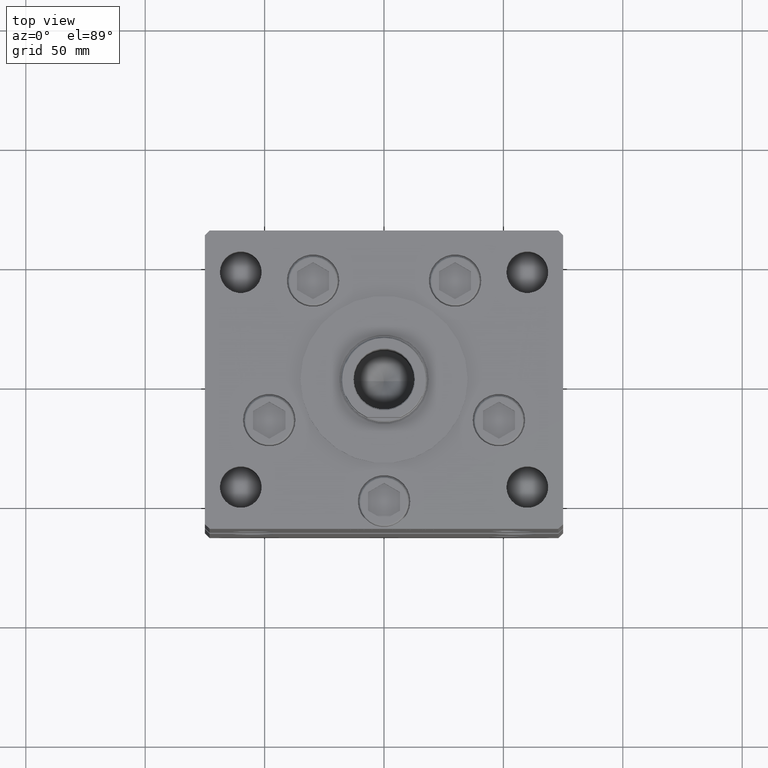
[diagram: clean part render]
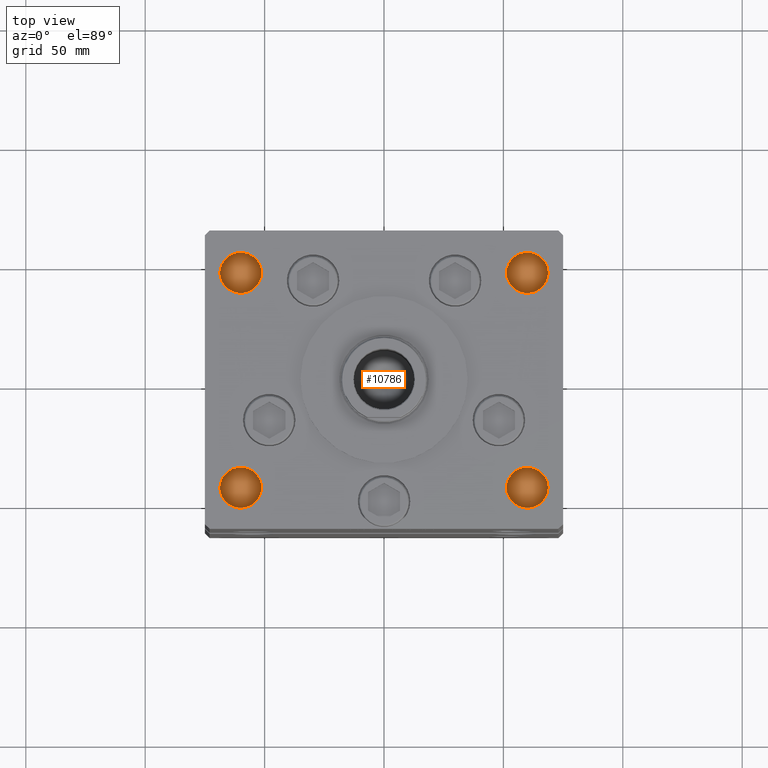
[diagram: same view with one face highlighted and labeled with its STEP entity id]
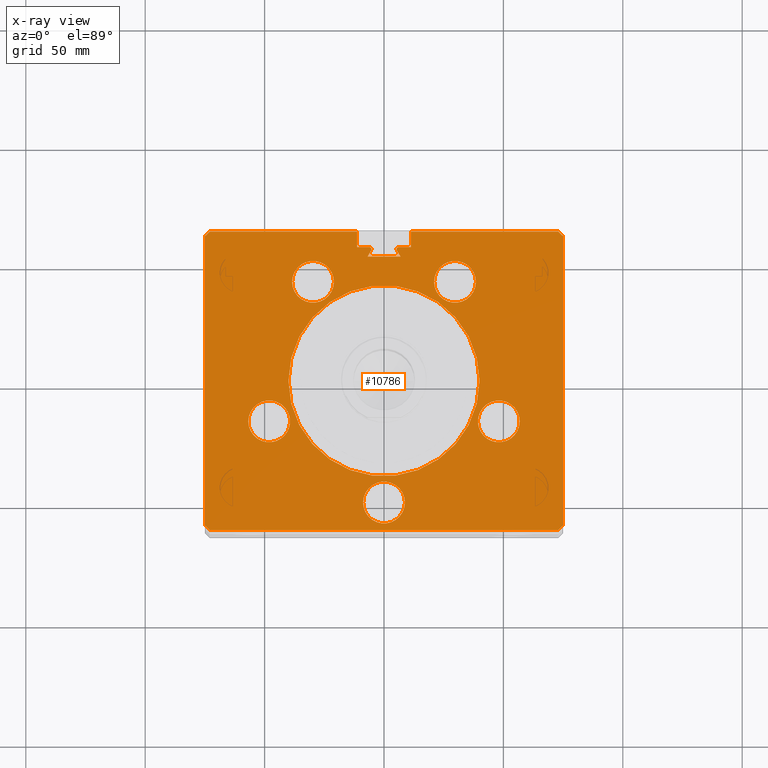
[diagram: x-ray of the same camera — body ghosted, the highlighted face saturated]
A machine part, top view. The second image highlights one B-rep face of the part: STEP entity #10786.
The next image is the same camera in x-ray: the body ghosted, the highlighted face saturated — about 0% of this face is hidden behind the body in this view.
In plain terms, the highlighted planar face has unit normal (0, 0, -1).
Its self-contained STEP definition (entity closure, byte-faithful):
#161 = CARTESIAN_POINT ( 'NONE',  ( -73.00000000000001421, 62.50000000000000000, 167.0000000000000000 ) ) ;
#331 = LINE ( 'NONE', #4872, #39174 ) ;
#793 = EDGE_CURVE ( 'NONE', #34822, #23140, #22831, .T. ) ;
#1015 = CARTESIAN_POINT ( 'NONE',  ( 48.08326112068522207, -17.00000000000000711, 167.0000000000000000 ) ) ;
#1034 = VERTEX_POINT ( 'NONE', #40977 ) ;
#1314 = VERTEX_POINT ( 'NONE', #36585 ) ;
#1406 = CARTESIAN_POINT ( 'NONE',  ( 8.750000000000003553, -51.00000000000000000, 167.0000000000000000 ) ) ;
#1613 = AXIS2_PLACEMENT_3D ( 'NONE', #17362, #29683, #37465 ) ;
#1704 = VERTEX_POINT ( 'NONE', #27078 ) ;
#1720 = LINE ( 'NONE', #47310, #35968 ) ;
#2141 = CIRCLE ( 'NONE', #38080, 8.750000000000000000 ) ;
#2282 = CARTESIAN_POINT ( 'NONE',  ( 5.375042956467948052, 54.59999999999899956, 166.9999999999999432 ) ) ;
#2542 = VECTOR ( 'NONE', #20468, 1000.000000000000114 ) ;
#3225 = EDGE_CURVE ( 'NONE', #25651, #11020, #12055, .T. ) ;
#3471 = CIRCLE ( 'NONE', #40296, 40.00000000000000000 ) ;
#3594 = LINE ( 'NONE', #6544, #5905 ) ;
#3629 = CARTESIAN_POINT ( 'NONE',  ( 20.98102073172059789, 41.43749999999999289, 167.0000000000000000 ) ) ;
#3754 = LINE ( 'NONE', #32956, #31756 ) ;
#4133 = DIRECTION ( 'NONE',  ( 1.000000000000000000, 0.000000000000000000, 0.000000000000000000 ) ) ;
#4184 = CIRCLE ( 'NONE', #1613, 8.750000000000000000 ) ;
#4506 = CARTESIAN_POINT ( 'NONE',  ( -74.99999999999998579, -60.50000000000000000, 167.0000000000000000 ) ) ;
#4621 = FACE_BOUND ( 'NONE', #29887, .T. ) ;
#4676 = CIRCLE ( 'NONE', #34644, 40.00000000000000000 ) ;
#4872 = CARTESIAN_POINT ( 'NONE',  ( -11.25000000000000178, 62.50000000000000000, 167.0000000000000000 ) ) ;
#5544 = ORIENTED_EDGE ( 'NONE', *, *, #49546, .T. ) ;
#5744 = ORIENTED_EDGE ( 'NONE', *, *, #24691, .T. ) ;
#5858 = LINE ( 'NONE', #35084, #47286 ) ;
#5900 = AXIS2_PLACEMENT_3D ( 'NONE', #1015, #20341, #16338 ) ;
#5905 = VECTOR ( 'NONE', #19148, 1000.000000000000114 ) ;
#6014 = VERTEX_POINT ( 'NONE', #17514 ) ;
#6207 = DIRECTION ( 'NONE',  ( -1.000000000000000000, 0.000000000000000000, -0.000000000000000000 ) ) ;
#6544 = CARTESIAN_POINT ( 'NONE',  ( 27.67377574066567192, 15.97746187336660384, 167.0000000000000000 ) ) ;
#6606 = EDGE_CURVE ( 'NONE', #40830, #40046, #26262, .T. ) ;
#6873 = CARTESIAN_POINT ( 'NONE',  ( 6.876153656360468602, 51.99999999999986500, 166.9999999999999432 ) ) ;
#7466 = ORIENTED_EDGE ( 'NONE', *, *, #793, .F. ) ;
#7652 = EDGE_CURVE ( 'NONE', #1314, #34822, #331, .T. ) ;
#7844 = LINE ( 'NONE', #8353, #50677 ) ;
#8013 = DIRECTION ( 'NONE',  ( -0.000000000000000000, -1.000000000000000000, 0.000000000000000000 ) ) ;
#8353 = CARTESIAN_POINT ( 'NONE',  ( -72.99999999999998579, -62.50000000000000000, 167.0000000000000000 ) ) ;
#8675 = VECTOR ( 'NONE', #10753, 1000.000000000000000 ) ;
#9193 = EDGE_CURVE ( 'NONE', #1314, #22740, #20065, .T. ) ;
#10150 = DIRECTION ( 'NONE',  ( 1.000000000000000000, 0.000000000000000000, 0.000000000000000000 ) ) ;
#10197 = AXIS2_PLACEMENT_3D ( 'NONE', #35243, #11109, #32018 ) ;
#10575 = ORIENTED_EDGE ( 'NONE', *, *, #16024, .F. ) ;
#10753 = DIRECTION ( 'NONE',  ( -2.293849224432141861E-16, -1.000000000000000000, 0.000000000000000000 ) ) ;
#10786 = ADVANCED_FACE ( 'NONE', ( #22007, #18003, #4621, #41612, #20970, #37328, #16948 ), #33574, .F. ) ;
#11020 = VERTEX_POINT ( 'NONE', #26790 ) ;
#11109 = DIRECTION ( 'NONE',  ( 0.000000000000000000, 0.000000000000000000, 1.000000000000000000 ) ) ;
#11117 = EDGE_CURVE ( 'NONE', #33768, #16156, #16048, .T. ) ;
#11382 = VERTEX_POINT ( 'NONE', #6873 ) ;
#11781 = EDGE_CURVE ( 'NONE', #1034, #45047, #24619, .T. ) ;
#11984 = LINE ( 'NONE', #161, #26699 ) ;
#12055 = CIRCLE ( 'NONE', #20491, 0.9333333333340008142 ) ;
#12238 = AXIS2_PLACEMENT_3D ( 'NONE', #27485, #28024, #4133 ) ;
#12816 = EDGE_CURVE ( 'NONE', #31543, #30214, #40932, .T. ) ;
#12830 = DIRECTION ( 'NONE',  ( 1.000000000000000000, 0.000000000000000000, 0.000000000000000000 ) ) ;
#14128 = CIRCLE ( 'NONE', #45816, 8.749999999999998224 ) ;
#14165 = CARTESIAN_POINT ( 'NONE',  ( -29.73102073172060855, 41.43749999999998579, 167.0000000000000000 ) ) ;
#14429 = DIRECTION ( 'NONE',  ( -0.000000000000000000, 0.000000000000000000, 1.000000000000000000 ) ) ;
#14934 = VERTEX_POINT ( 'NONE', #47616 ) ;
#15102 = EDGE_LOOP ( 'NONE', ( #40700, #37986 ) ) ;
#15188 = ORIENTED_EDGE ( 'NONE', *, *, #26455, .F. ) ;
#15540 = DIRECTION ( 'NONE',  ( 0.000000000000000000, 0.000000000000000000, 1.000000000000000000 ) ) ;
#15971 = DIRECTION ( 'NONE',  ( 1.000000000000000000, 0.000000000000000000, 0.000000000000000000 ) ) ;
#16024 = EDGE_CURVE ( 'NONE', #37849, #27660, #4184, .T. ) ;
#16035 = CARTESIAN_POINT ( 'NONE',  ( 39.33326112068522207, -17.00000000000000711, 167.0000000000000000 ) ) ;
#16048 = LINE ( 'NONE', #19800, #18616 ) ;
#16156 = VERTEX_POINT ( 'NONE', #26926 ) ;
#16169 = EDGE_CURVE ( 'NONE', #30214, #31543, #47905, .T. ) ;
#16181 = EDGE_CURVE ( 'NONE', #40759, #11382, #3594, .T. ) ;
#16222 = CARTESIAN_POINT ( 'NONE',  ( -5.250000000000000000, 55.06666666666600207, 166.9999999999999432 ) ) ;
#16338 = DIRECTION ( 'NONE',  ( 1.000000000000000000, 0.000000000000000000, 0.000000000000000000 ) ) ;
#16467 = LINE ( 'NONE', #41116, #2542 ) ;
#16563 = ORIENTED_EDGE ( 'NONE', *, *, #38733, .T. ) ;
#16929 = VERTEX_POINT ( 'NONE', #4506 ) ;
#16948 = FACE_BOUND ( 'NONE', #20576, .T. ) ;
#17084 = ORIENTED_EDGE ( 'NONE', *, *, #37853, .F. ) ;
#17133 = ORIENTED_EDGE ( 'NONE', *, *, #11117, .F. ) ;
#17315 = CIRCLE ( 'NONE', #31903, 0.9333333333340008142 ) ;
#17362 = CARTESIAN_POINT ( 'NONE',  ( 48.08326112068522207, -17.00000000000000711, 167.0000000000000000 ) ) ;
#17473 = VERTEX_POINT ( 'NONE', #40072 ) ;
#17514 = CARTESIAN_POINT ( 'NONE',  ( -75.00000000000001421, 60.50000000000000000, 167.0000000000000000 ) ) ;
#17537 = CIRCLE ( 'NONE', #26992, 8.750000000000003553 ) ;
#17614 = LINE ( 'NONE', #41486, #31712 ) ;
#18003 = FACE_BOUND ( 'NONE', #50098, .T. ) ;
#18040 = DIRECTION ( 'NONE',  ( 0.000000000000000000, 0.000000000000000000, 1.000000000000000000 ) ) ;
#18265 = CARTESIAN_POINT ( 'NONE',  ( 0.000000000000000000, 56.00000000000000000, 167.0000000000000000 ) ) ;
#18285 = DIRECTION ( 'NONE',  ( -0.000000000000000000, 0.000000000000000000, 1.000000000000000000 ) ) ;
#18450 = DIRECTION ( 'NONE',  ( 0.000000000000000000, 0.000000000000000000, 1.000000000000000000 ) ) ;
#18510 = EDGE_CURVE ( 'NONE', #27594, #11020, #16467, .T. ) ;
#18530 = VERTEX_POINT ( 'NONE', #36578 ) ;
#18616 = VECTOR ( 'NONE', #47963, 1000.000000000000000 ) ;
#18721 = DIRECTION ( 'NONE',  ( -1.000000000000000000, 0.000000000000000000, 0.000000000000000000 ) ) ;
#19131 = ORIENTED_EDGE ( 'NONE', *, *, #7652, .F. ) ;
#19148 = DIRECTION ( 'NONE',  ( 0.4999999999999986122, -0.8660254037844393737, 0.000000000000000000 ) ) ;
#19564 = DIRECTION ( 'NONE',  ( 1.000000000000000000, 0.000000000000000000, 0.000000000000000000 ) ) ;
#19623 = EDGE_CURVE ( 'NONE', #11382, #27594, #51607, .T. ) ;
#19800 = CARTESIAN_POINT ( 'NONE',  ( -11.25000000000000178, 62.50000000000000000, 167.0000000000000000 ) ) ;
#20065 = LINE ( 'NONE', #48745, #47669 ) ;
#20137 = CARTESIAN_POINT ( 'NONE',  ( 73.00000000000001421, 62.50000000000000000, 167.0000000000000000 ) ) ;
#20341 = DIRECTION ( 'NONE',  ( 0.000000000000000000, 0.000000000000000000, 1.000000000000000000 ) ) ;
#20468 = DIRECTION ( 'NONE',  ( 0.4999999999999986122, 0.8660254037844393737, 0.000000000000000000 ) ) ;
#20491 = AXIS2_PLACEMENT_3D ( 'NONE', #31794, #48152, #47877 ) ;
#20533 = DIRECTION ( 'NONE',  ( -0.7071067811865474617, -0.7071067811865474617, 0.000000000000000000 ) ) ;
#20576 = EDGE_LOOP ( 'NONE', ( #30939, #47410 ) ) ;
#20719 = EDGE_CURVE ( 'NONE', #14934, #17473, #3471, .T. ) ;
#20970 = FACE_BOUND ( 'NONE', #34753, .T. ) ;
#21050 = VERTEX_POINT ( 'NONE', #38330 ) ;
#21340 = ORIENTED_EDGE ( 'NONE', *, *, #32111, .F. ) ;
#21363 = VECTOR ( 'NONE', #23382, 1000.000000000000114 ) ;
#21382 = CARTESIAN_POINT ( 'NONE',  ( -72.99999999999998579, -62.50000000000000000, 167.0000000000000000 ) ) ;
#21593 = CARTESIAN_POINT ( 'NONE',  ( -11.25000000000000178, 0.000000000000000000, 167.0000000000000000 ) ) ;
#22007 = FACE_BOUND ( 'NONE', #34820, .T. ) ;
#22296 = CARTESIAN_POINT ( 'NONE',  ( 0.000000000000000000, 0.000000000000000000, 167.0000000000000000 ) ) ;
#22740 = VERTEX_POINT ( 'NONE', #39413 ) ;
#22831 = LINE ( 'NONE', #39195, #21363 ) ;
#23140 = VERTEX_POINT ( 'NONE', #50591 ) ;
#23382 = DIRECTION ( 'NONE',  ( 0.7071067811865474617, -0.7071067811865474617, 0.000000000000000000 ) ) ;
#23435 = EDGE_CURVE ( 'NONE', #33768, #6014, #11984, .T. ) ;
#23544 = CARTESIAN_POINT ( 'NONE',  ( -11.25000000000000178, 56.00000000000000000, 166.9999999999999432 ) ) ;
#23757 = CIRCLE ( 'NONE', #47704, 0.9333333333340008142 ) ;
#23761 = ORIENTED_EDGE ( 'NONE', *, *, #9193, .T. ) ;
#24028 = ORIENTED_EDGE ( 'NONE', *, *, #49109, .T. ) ;
#24619 = CIRCLE ( 'NONE', #35740, 8.750000000000000000 ) ;
#24691 = EDGE_CURVE ( 'NONE', #46215, #29485, #7844, .T. ) ;
#24971 = DIRECTION ( 'NONE',  ( 1.000000000000000000, 0.000000000000000000, 0.000000000000000000 ) ) ;
#25651 = VERTEX_POINT ( 'NONE', #16222 ) ;
#25824 = CARTESIAN_POINT ( 'NONE',  ( -38.48102073172060500, 41.43749999999998579, 167.0000000000000000 ) ) ;
#26262 = CIRCLE ( 'NONE', #33130, 8.750000000000003553 ) ;
#26299 = DIRECTION ( 'NONE',  ( 0.000000000000000000, 0.000000000000000000, -1.000000000000000000 ) ) ;
#26455 = EDGE_CURVE ( 'NONE', #21050, #29485, #3754, .T. ) ;
#26699 = VECTOR ( 'NONE', #20533, 1000.000000000000114 ) ;
#26713 = ORIENTED_EDGE ( 'NONE', *, *, #3225, .F. ) ;
#26790 = CARTESIAN_POINT ( 'NONE',  ( -5.375042956467949828, 54.59999999999899956, 166.9999999999999432 ) ) ;
#26926 = CARTESIAN_POINT ( 'NONE',  ( -11.25000000000000178, 62.50000000000000000, 166.9999999999999432 ) ) ;
#26992 = AXIS2_PLACEMENT_3D ( 'NONE', #34012, #18450, #50357 ) ;
#27078 = CARTESIAN_POINT ( 'NONE',  ( -20.98102073172061210, 41.43749999999998579, 167.0000000000000000 ) ) ;
#27372 = EDGE_CURVE ( 'NONE', #23140, #21050, #31384, .T. ) ;
#27485 = CARTESIAN_POINT ( 'NONE',  ( -29.73102073172060855, 41.43749999999998579, 167.0000000000000000 ) ) ;
#27594 = VERTEX_POINT ( 'NONE', #34816 ) ;
#27660 = VERTEX_POINT ( 'NONE', #48728 ) ;
#27701 = DIRECTION ( 'NONE',  ( 1.000000000000000000, 0.000000000000000000, 0.000000000000000000 ) ) ;
#28024 = DIRECTION ( 'NONE',  ( 0.000000000000000000, 0.000000000000000000, 1.000000000000000000 ) ) ;
#28054 = AXIS2_PLACEMENT_3D ( 'NONE', #49913, #26299, #6207 ) ;
#28130 = CARTESIAN_POINT ( 'NONE',  ( -48.08326112068522207, -17.00000000000001421, 167.0000000000000000 ) ) ;
#29485 = VERTEX_POINT ( 'NONE', #34277 ) ;
#29543 = ORIENTED_EDGE ( 'NONE', *, *, #18510, .T. ) ;
#29683 = DIRECTION ( 'NONE',  ( 0.000000000000000000, 0.000000000000000000, 1.000000000000000000 ) ) ;
#29825 = EDGE_CURVE ( 'NONE', #33593, #25651, #17315, .T. ) ;
#29887 = EDGE_LOOP ( 'NONE', ( #44588, #10575 ) ) ;
#30164 = EDGE_CURVE ( 'NONE', #22740, #18530, #5858, .T. ) ;
#30214 = VERTEX_POINT ( 'NONE', #38570 ) ;
#30227 = ORIENTED_EDGE ( 'NONE', *, *, #23435, .T. ) ;
#30616 = CARTESIAN_POINT ( 'NONE',  ( -39.33326112068522207, -17.00000000000001421, 167.0000000000000000 ) ) ;
#30939 = ORIENTED_EDGE ( 'NONE', *, *, #20719, .F. ) ;
#30999 = ORIENTED_EDGE ( 'NONE', *, *, #41144, .F. ) ;
#31312 = DIRECTION ( 'NONE',  ( 1.000000000000000000, 0.000000000000000000, 0.000000000000000000 ) ) ;
#31384 = LINE ( 'NONE', #47479, #8675 ) ;
#31543 = VERTEX_POINT ( 'NONE', #1406 ) ;
#31712 = VECTOR ( 'NONE', #38519, 1000.000000000000000 ) ;
#31716 = DIRECTION ( 'NONE',  ( 0.000000000000000000, 0.000000000000000000, -1.000000000000000000 ) ) ;
#31756 = VECTOR ( 'NONE', #44521, 1000.000000000000114 ) ;
#31794 = CARTESIAN_POINT ( 'NONE',  ( -6.183333333334001480, 55.06666666666600207, 166.9999999999999432 ) ) ;
#31903 = AXIS2_PLACEMENT_3D ( 'NONE', #52689, #49706, #15971 ) ;
#32018 = DIRECTION ( 'NONE',  ( 1.000000000000000000, 0.000000000000000000, 0.000000000000000000 ) ) ;
#32111 = EDGE_CURVE ( 'NONE', #1704, #52627, #35344, .T. ) ;
#32406 = DIRECTION ( 'NONE',  ( 1.000000000000000000, 0.000000000000000000, 0.000000000000000000 ) ) ;
#32956 = CARTESIAN_POINT ( 'NONE',  ( 74.99999999999998579, -60.50000000000000000, 167.0000000000000000 ) ) ;
#33130 = AXIS2_PLACEMENT_3D ( 'NONE', #49282, #37230, #12830 ) ;
#33574 = PLANE ( 'NONE',  #28054 ) ;
#33593 = VERTEX_POINT ( 'NONE', #50692 ) ;
#33768 = VERTEX_POINT ( 'NONE', #38058 ) ;
#34012 = CARTESIAN_POINT ( 'NONE',  ( 29.73102073172060145, 41.43749999999999289, 167.0000000000000000 ) ) ;
#34277 = CARTESIAN_POINT ( 'NONE',  ( 72.99999999999998579, -62.50000000000000000, 167.0000000000000000 ) ) ;
#34644 = AXIS2_PLACEMENT_3D ( 'NONE', #51677, #14429, #31312 ) ;
#34753 = EDGE_LOOP ( 'NONE', ( #21340, #42745 ) ) ;
#34816 = CARTESIAN_POINT ( 'NONE',  ( -6.876153656360468602, 51.99999999999986500, 166.9999999999999432 ) ) ;
#34820 = EDGE_LOOP ( 'NONE', ( #17084, #43276 ) ) ;
#34822 = VERTEX_POINT ( 'NONE', #20137 ) ;
#34991 = DIRECTION ( 'NONE',  ( -1.000000000000000000, 0.000000000000000000, 0.000000000000000000 ) ) ;
#35084 = CARTESIAN_POINT ( 'NONE',  ( 0.000000000000000000, 56.00000000000000000, 167.0000000000000000 ) ) ;
#35243 = CARTESIAN_POINT ( 'NONE',  ( 3.122849337825750222E-15, -51.00000000000000000, 167.0000000000000000 ) ) ;
#35344 = CIRCLE ( 'NONE', #12238, 8.749999999999998224 ) ;
#35571 = ORIENTED_EDGE ( 'NONE', *, *, #16169, .F. ) ;
#35738 = CARTESIAN_POINT ( 'NONE',  ( 6.183333333334001480, 55.06666666666600207, 166.9999999999999432 ) ) ;
#35740 = AXIS2_PLACEMENT_3D ( 'NONE', #28130, #15540, #32406 ) ;
#35968 = VECTOR ( 'NONE', #39255, 1000.000000000000114 ) ;
#36015 = ORIENTED_EDGE ( 'NONE', *, *, #19623, .T. ) ;
#36578 = CARTESIAN_POINT ( 'NONE',  ( 6.183333333334001480, 56.00000000000000000, 166.9999999999999432 ) ) ;
#36585 = CARTESIAN_POINT ( 'NONE',  ( 11.24999999999999112, 62.50000000000000000, 167.0000000000000000 ) ) ;
#36931 = EDGE_CURVE ( 'NONE', #17473, #14934, #4676, .T. ) ;
#37230 = DIRECTION ( 'NONE',  ( 0.000000000000000000, 0.000000000000000000, 1.000000000000000000 ) ) ;
#37328 = FACE_OUTER_BOUND ( 'NONE', #41173, .T. ) ;
#37465 = DIRECTION ( 'NONE',  ( 1.000000000000000000, 0.000000000000000000, 0.000000000000000000 ) ) ;
#37591 = EDGE_CURVE ( 'NONE', #40046, #40830, #17537, .T. ) ;
#37698 = EDGE_CURVE ( 'NONE', #52627, #1704, #14128, .T. ) ;
#37849 = VERTEX_POINT ( 'NONE', #16035 ) ;
#37853 = EDGE_CURVE ( 'NONE', #45047, #1034, #2141, .T. ) ;
#37986 = ORIENTED_EDGE ( 'NONE', *, *, #6606, .F. ) ;
#38058 = CARTESIAN_POINT ( 'NONE',  ( -73.00000000000001421, 62.50000000000000000, 167.0000000000000000 ) ) ;
#38080 = AXIS2_PLACEMENT_3D ( 'NONE', #49238, #40694, #45234 ) ;
#38330 = CARTESIAN_POINT ( 'NONE',  ( 74.99999999999998579, -60.50000000000000000, 167.0000000000000000 ) ) ;
#38519 = DIRECTION ( 'NONE',  ( 2.293849224432141861E-16, -1.000000000000000000, 0.000000000000000000 ) ) ;
#38570 = CARTESIAN_POINT ( 'NONE',  ( -8.749999999999998224, -51.00000000000000000, 167.0000000000000000 ) ) ;
#38733 = EDGE_CURVE ( 'NONE', #33593, #47303, #47226, .T. ) ;
#39098 = VECTOR ( 'NONE', #51762, 1000.000000000000000 ) ;
#39174 = VECTOR ( 'NONE', #50168, 1000.000000000000000 ) ;
#39195 = CARTESIAN_POINT ( 'NONE',  ( 73.00000000000001421, 62.50000000000000000, 167.0000000000000000 ) ) ;
#39255 = DIRECTION ( 'NONE',  ( 0.7071067811865474617, -0.7071067811865474617, 0.000000000000000000 ) ) ;
#39413 = CARTESIAN_POINT ( 'NONE',  ( 11.25000000000000178, 56.00000000000000000, 166.9999999999999432 ) ) ;
#39716 = ORIENTED_EDGE ( 'NONE', *, *, #27372, .F. ) ;
#39893 = EDGE_CURVE ( 'NONE', #47303, #16156, #49479, .T. ) ;
#40046 = VERTEX_POINT ( 'NONE', #52412 ) ;
#40072 = CARTESIAN_POINT ( 'NONE',  ( 40.00000000000000000, 4.898587196589412237E-15, 167.0000000000000000 ) ) ;
#40296 = AXIS2_PLACEMENT_3D ( 'NONE', #22296, #18285, #43224 ) ;
#40694 = DIRECTION ( 'NONE',  ( 0.000000000000000000, 0.000000000000000000, 1.000000000000000000 ) ) ;
#40700 = ORIENTED_EDGE ( 'NONE', *, *, #37591, .F. ) ;
#40759 = VERTEX_POINT ( 'NONE', #2282 ) ;
#40830 = VERTEX_POINT ( 'NONE', #3629 ) ;
#40932 = CIRCLE ( 'NONE', #47788, 8.750000000000000000 ) ;
#40977 = CARTESIAN_POINT ( 'NONE',  ( -56.83326112068522207, -17.00000000000001421, 167.0000000000000000 ) ) ;
#41116 = CARTESIAN_POINT ( 'NONE',  ( -27.67377574066567192, 15.97746187336660384, 167.0000000000000000 ) ) ;
#41144 = EDGE_CURVE ( 'NONE', #40759, #18530, #23757, .T. ) ;
#41169 = ORIENTED_EDGE ( 'NONE', *, *, #29825, .F. ) ;
#41173 = EDGE_LOOP ( 'NONE', ( #16563, #47308, #17133, #30227, #24028, #5544, #5744, #15188, #39716, #7466, #19131, #23761, #47901, #30999, #47279, #36015, #29543, #26713, #41169 ) ) ;
#41486 = CARTESIAN_POINT ( 'NONE',  ( -75.00000000000001421, 60.50000000000000000, 167.0000000000000000 ) ) ;
#41612 = FACE_BOUND ( 'NONE', #15102, .T. ) ;
#42745 = ORIENTED_EDGE ( 'NONE', *, *, #37698, .F. ) ;
#43224 = DIRECTION ( 'NONE',  ( 1.000000000000000000, 0.000000000000000000, 0.000000000000000000 ) ) ;
#43276 = ORIENTED_EDGE ( 'NONE', *, *, #11781, .F. ) ;
#43968 = ORIENTED_EDGE ( 'NONE', *, *, #12816, .F. ) ;
#44521 = DIRECTION ( 'NONE',  ( -0.7071067811865474617, -0.7071067811865474617, 0.000000000000000000 ) ) ;
#44588 = ORIENTED_EDGE ( 'NONE', *, *, #46267, .F. ) ;
#45047 = VERTEX_POINT ( 'NONE', #30616 ) ;
#45234 = DIRECTION ( 'NONE',  ( 1.000000000000000000, 0.000000000000000000, 0.000000000000000000 ) ) ;
#45816 = AXIS2_PLACEMENT_3D ( 'NONE', #14165, #46871, #10150 ) ;
#46093 = VECTOR ( 'NONE', #46530, 1000.000000000000000 ) ;
#46215 = VERTEX_POINT ( 'NONE', #21382 ) ;
#46267 = EDGE_CURVE ( 'NONE', #27660, #37849, #52146, .T. ) ;
#46469 = CARTESIAN_POINT ( 'NONE',  ( 3.122849337825750222E-15, -51.00000000000000000, 167.0000000000000000 ) ) ;
#46530 = DIRECTION ( 'NONE',  ( 0.000000000000000000, 1.000000000000000000, 0.000000000000000000 ) ) ;
#46871 = DIRECTION ( 'NONE',  ( 0.000000000000000000, 0.000000000000000000, 1.000000000000000000 ) ) ;
#47226 = LINE ( 'NONE', #18265, #39098 ) ;
#47279 = ORIENTED_EDGE ( 'NONE', *, *, #16181, .T. ) ;
#47286 = VECTOR ( 'NONE', #18721, 1000.000000000000000 ) ;
#47303 = VERTEX_POINT ( 'NONE', #23544 ) ;
#47308 = ORIENTED_EDGE ( 'NONE', *, *, #39893, .T. ) ;
#47310 = CARTESIAN_POINT ( 'NONE',  ( -74.99999999999998579, -60.50000000000000000, 167.0000000000000000 ) ) ;
#47410 = ORIENTED_EDGE ( 'NONE', *, *, #36931, .F. ) ;
#47479 = CARTESIAN_POINT ( 'NONE',  ( 75.00000000000001421, 60.50000000000000000, 167.0000000000000000 ) ) ;
#47588 = CARTESIAN_POINT ( 'NONE',  ( 0.000000000000000000, 51.99999999999986500, 167.0000000000000000 ) ) ;
#47616 = CARTESIAN_POINT ( 'NONE',  ( -40.00000000000000000, 0.000000000000000000, 167.0000000000000000 ) ) ;
#47669 = VECTOR ( 'NONE', #8013, 1000.000000000000000 ) ;
#47704 = AXIS2_PLACEMENT_3D ( 'NONE', #35738, #31716, #27701 ) ;
#47788 = AXIS2_PLACEMENT_3D ( 'NONE', #46469, #18040, #19564 ) ;
#47877 = DIRECTION ( 'NONE',  ( 1.000000000000000000, 0.000000000000000000, 0.000000000000000000 ) ) ;
#47901 = ORIENTED_EDGE ( 'NONE', *, *, #30164, .T. ) ;
#47905 = CIRCLE ( 'NONE', #10197, 8.750000000000000000 ) ;
#47963 = DIRECTION ( 'NONE',  ( 1.000000000000000000, 0.000000000000000000, 0.000000000000000000 ) ) ;
#47982 = VECTOR ( 'NONE', #34991, 1000.000000000000000 ) ;
#48152 = DIRECTION ( 'NONE',  ( 0.000000000000000000, 0.000000000000000000, -1.000000000000000000 ) ) ;
#48728 = CARTESIAN_POINT ( 'NONE',  ( 56.83326112068522207, -17.00000000000000711, 167.0000000000000000 ) ) ;
#48745 = CARTESIAN_POINT ( 'NONE',  ( 11.25000000000000178, 0.000000000000000000, 167.0000000000000000 ) ) ;
#49109 = EDGE_CURVE ( 'NONE', #6014, #16929, #17614, .T. ) ;
#49238 = CARTESIAN_POINT ( 'NONE',  ( -48.08326112068522207, -17.00000000000001421, 167.0000000000000000 ) ) ;
#49282 = CARTESIAN_POINT ( 'NONE',  ( 29.73102073172060145, 41.43749999999999289, 167.0000000000000000 ) ) ;
#49479 = LINE ( 'NONE', #21593, #46093 ) ;
#49546 = EDGE_CURVE ( 'NONE', #16929, #46215, #1720, .T. ) ;
#49706 = DIRECTION ( 'NONE',  ( 0.000000000000000000, 0.000000000000000000, -1.000000000000000000 ) ) ;
#49913 = CARTESIAN_POINT ( 'NONE',  ( 0.000000000000000000, 0.000000000000000000, 167.0000000000000000 ) ) ;
#50098 = EDGE_LOOP ( 'NONE', ( #43968, #35571 ) ) ;
#50168 = DIRECTION ( 'NONE',  ( 1.000000000000000000, 0.000000000000000000, 0.000000000000000000 ) ) ;
#50357 = DIRECTION ( 'NONE',  ( 1.000000000000000000, 0.000000000000000000, 0.000000000000000000 ) ) ;
#50591 = CARTESIAN_POINT ( 'NONE',  ( 75.00000000000001421, 60.50000000000000000, 167.0000000000000000 ) ) ;
#50677 = VECTOR ( 'NONE', #24971, 1000.000000000000000 ) ;
#50692 = CARTESIAN_POINT ( 'NONE',  ( -6.183333333334002369, 56.00000000000000000, 166.9999999999999432 ) ) ;
#51607 = LINE ( 'NONE', #47588, #47982 ) ;
#51677 = CARTESIAN_POINT ( 'NONE',  ( 0.000000000000000000, 0.000000000000000000, 167.0000000000000000 ) ) ;
#51762 = DIRECTION ( 'NONE',  ( -1.000000000000000000, 0.000000000000000000, 0.000000000000000000 ) ) ;
#52146 = CIRCLE ( 'NONE', #5900, 8.750000000000000000 ) ;
#52412 = CARTESIAN_POINT ( 'NONE',  ( 38.48102073172060500, 41.43749999999999289, 167.0000000000000000 ) ) ;
#52627 = VERTEX_POINT ( 'NONE', #25824 ) ;
#52689 = CARTESIAN_POINT ( 'NONE',  ( -6.183333333334001480, 55.06666666666600207, 166.9999999999999432 ) ) ;